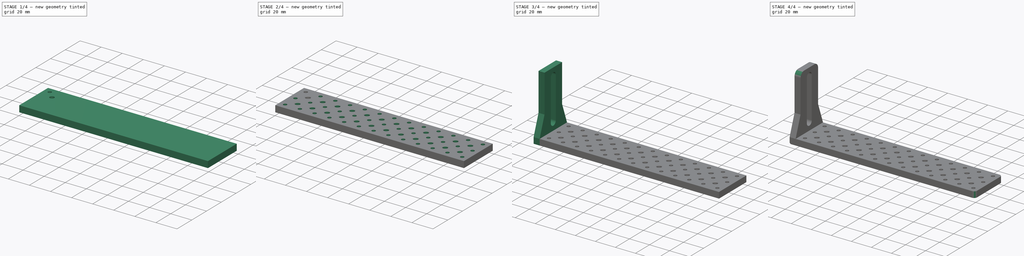
[diagram: build sequence overview — one tinted view per stage of 4, left to right]
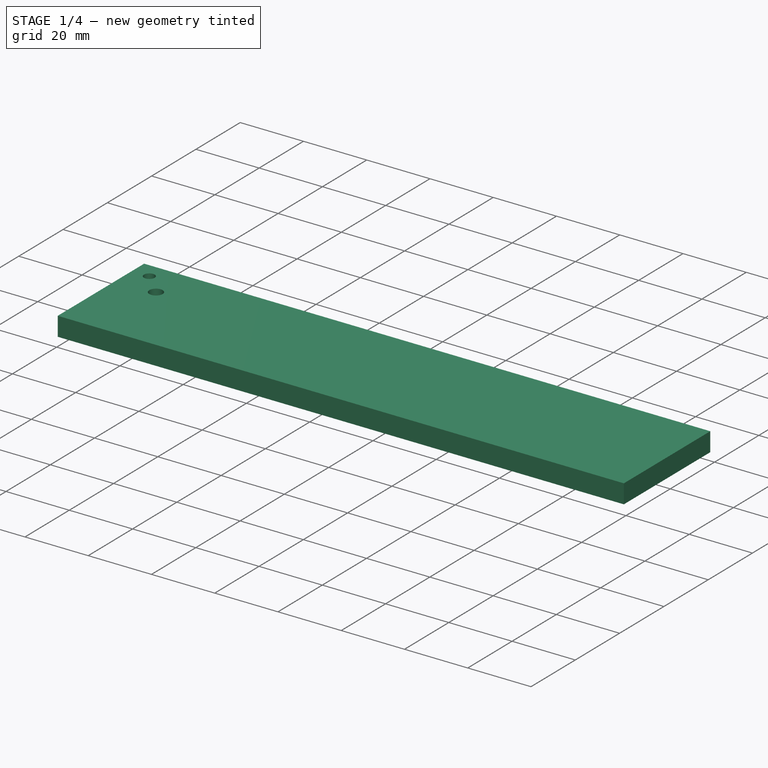
[diagram: stage 1 of 4 — iso view after this stage's code; geometry added in this stage tinted green]
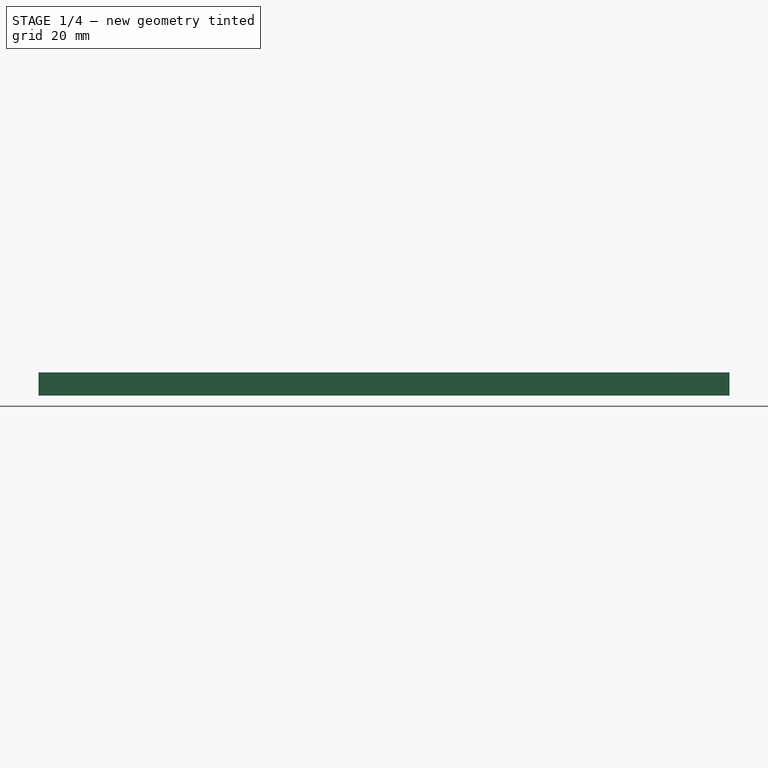
[diagram: stage 1 of 4 — front view after this stage's code; geometry added in this stage tinted green]
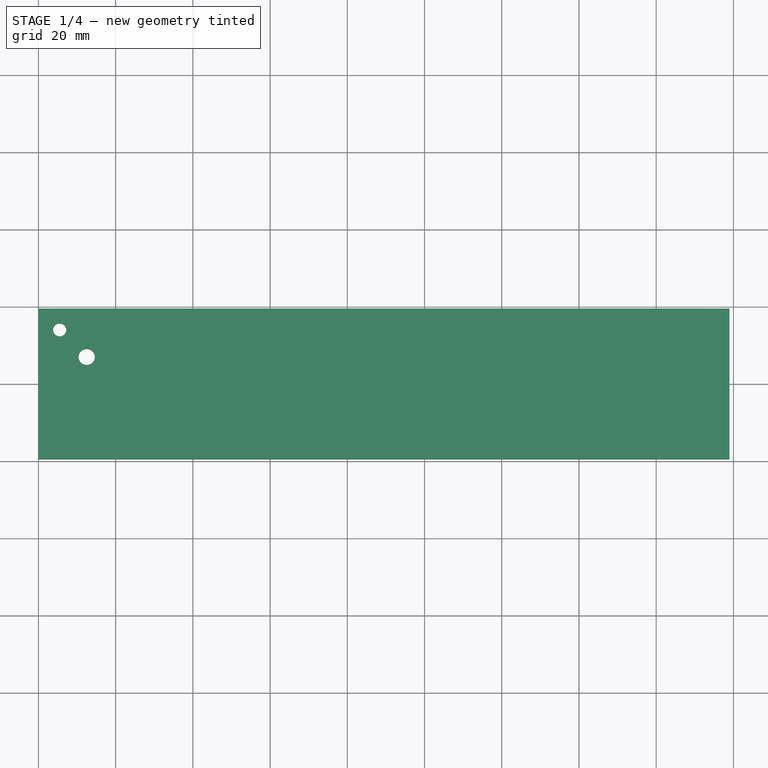
[diagram: stage 1 of 4 — top view after this stage's code; geometry added in this stage tinted green]
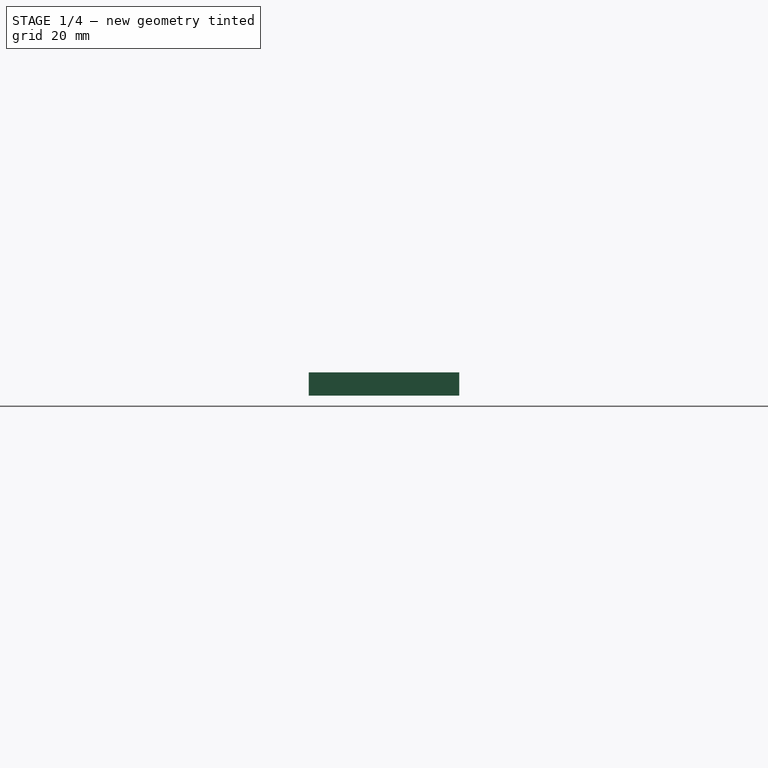
[diagram: stage 1 of 4 — right view after this stage's code; geometry added in this stage tinted green]
FCSTD DOCUMENT  (FreeCAD 0.19R)
Label: hat_rod
License: All rights reserved
LicenseURL: http://en.wikipedia.org/wiki/All_rights_reserved
objects: Sketcher::SketchObject×5, PartDesign::LinearPattern×3, PartDesign::Pad×2, PartDesign::Pocket×2, PartDesign::Chamfer×2, PartDesign::MultiTransform×2, PartDesign::Fillet×2, PartDesign::Hole×1, PartDesign::Mirrored×1, PartDesign::Body×1
note: 30 computed .brp shape members not serialized (recipe doc carries the construction recipe); baked Part::Feature solids carry a one-line shape summary decoded from their .brp

FEATURE [Sketcher::SketchObject] Sketch  label="rod_sk"
  FullyConstrained = true
  MapMode = 5
  Support = -> [XY_Plane]
  sketch-geometry (4):
    g0: LineSegment StartX=0 StartY=19.5 StartZ=0 EndX=179 EndY=19.5 EndZ=0
    g1: LineSegment StartX=179 StartY=19.5 StartZ=0 EndX=179 EndY=-19.5 EndZ=0
    g2: LineSegment StartX=179 StartY=-19.5 StartZ=0 EndX=0 EndY=-19.5 EndZ=0
    g3: LineSegment StartX=0 StartY=-19.5 StartZ=0 EndX=0 EndY=19.5 EndZ=0
  constraints (11):
    c: Coincident(g0,g1)
    c: Coincident(g1,g2)
    c: Coincident(g2,g3)
    c: Coincident(g3,g0)
    c: Horizontal(g0)
    c: Horizontal(g2)
    c: Vertical(g1)
    c: PointOnObject(g0,g-2)
    c: Symmetric(g2,g0,g-1)
    c: DistanceY(g3,g3) = 39
    c: DistanceX(g0,g0) = 179
FEATURE [PartDesign::Pad] Pad  label="rod"
  Direction = (1,1,1)
  Length = 6
  Length2 = 100
  Midplane = true
  Profile = -> Sketch
  Type = 0
FEATURE [Sketcher::SketchObject] Sketch001  label="dowel_hole_sk"
  FullyConstrained = true
  MapMode = 5
  Placement = pos=(0,0,3) rot=(0,0,1;0rad)
  Support = -> [Pad]
  sketch-geometry (1):
    g0: Circle CenterX=12.5 CenterY=7 CenterZ=0 NormalX=0 NormalY=0 NormalZ=1 AngleXU=0 Radius=2.1
  constraints (3):
    c: DistanceX(g0) = 12.5
    c: DistanceY(g0) = 7
    c: Radius(g0) = 2.1
FEATURE [PartDesign::Pocket] Pocket  label="dowel_hole"
  BaseFeature = -> Pad
  Length = 5
  Length2 = 100
  Profile = -> Sketch001
  Type = 1
FEATURE [Sketcher::SketchObject] Sketch002  label="M3_hole_sk"
  ExternalGeometry = -> [Pocket]
  FullyConstrained = true
  MapMode = 5
  Placement = pos=(0,0,3) rot=(0,0,1;0rad)
  Support = -> [Pocket]
  sketch-geometry (1):
    g0: Circle CenterX=5.5 CenterY=14 CenterZ=0 NormalX=0 NormalY=0 NormalZ=1 AngleXU=0 Radius=1
  constraints (3):
    c: DistanceX(g0,g-3) = 7
    c: DistanceY(g-3,g0) = 7
    c: Radius(g0) = 1
FEATURE [PartDesign::Hole] Hole  label="M3_hole"
  BaseFeature = -> Pocket
  Depth = 25
  DepthType = 1
  Diameter = 3.4
  DrillForDepth = false
  DrillPoint = 1
  DrillPointAngle = 118
  HoleCutCountersinkAngle = 90
  HoleCutCustomValues = false
  HoleCutDepth = 0
  HoleCutDiameter = 6.1
  HoleCutType = 0
  ModelActualThread = false
  Profile = -> Sketch002
  Tapered = false
  TaperedAngle = 90
  ThreadAngle = 0
  ThreadClass = 0
  ThreadCutOffInner = 0
  ThreadCutOffOuter = 0
  ThreadDirection = 0
  ThreadFit = 0
  ThreadPitch = 0
  ThreadSize = 9
  ThreadType = 1
  Threaded = false
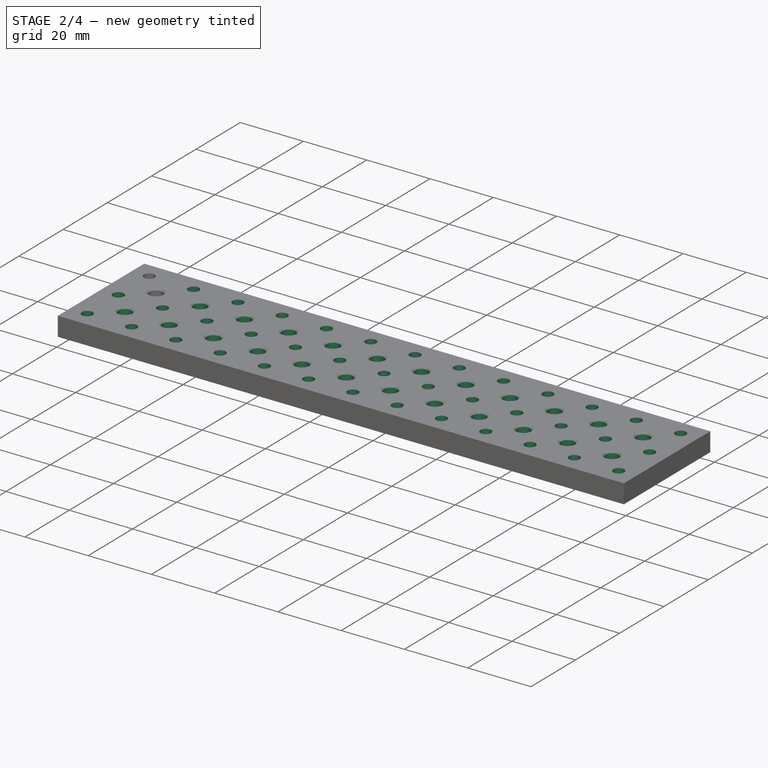
[diagram: stage 2 of 4 — iso view after this stage's code; geometry added in this stage tinted green]
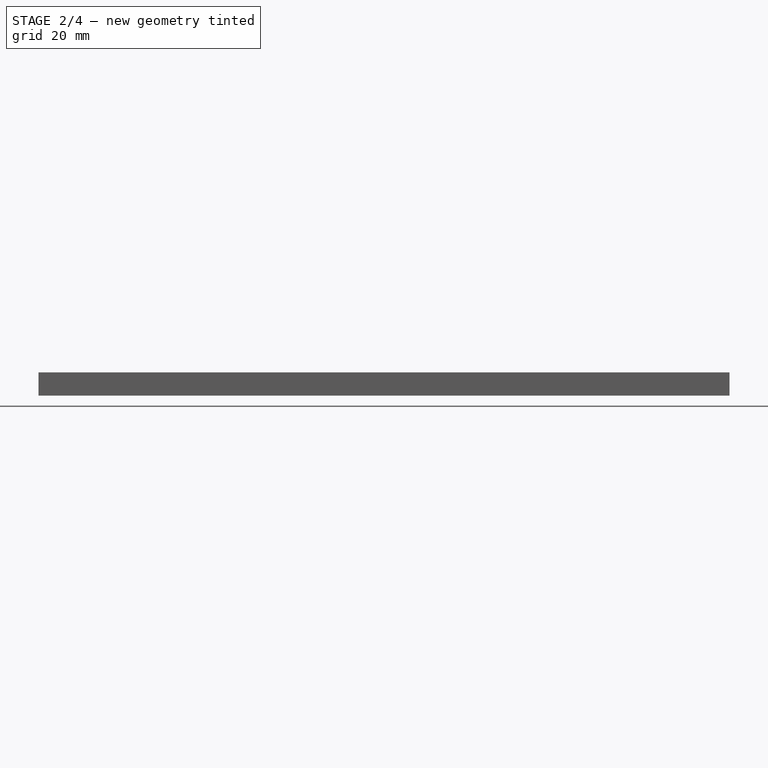
[diagram: stage 2 of 4 — front view after this stage's code; geometry added in this stage tinted green]
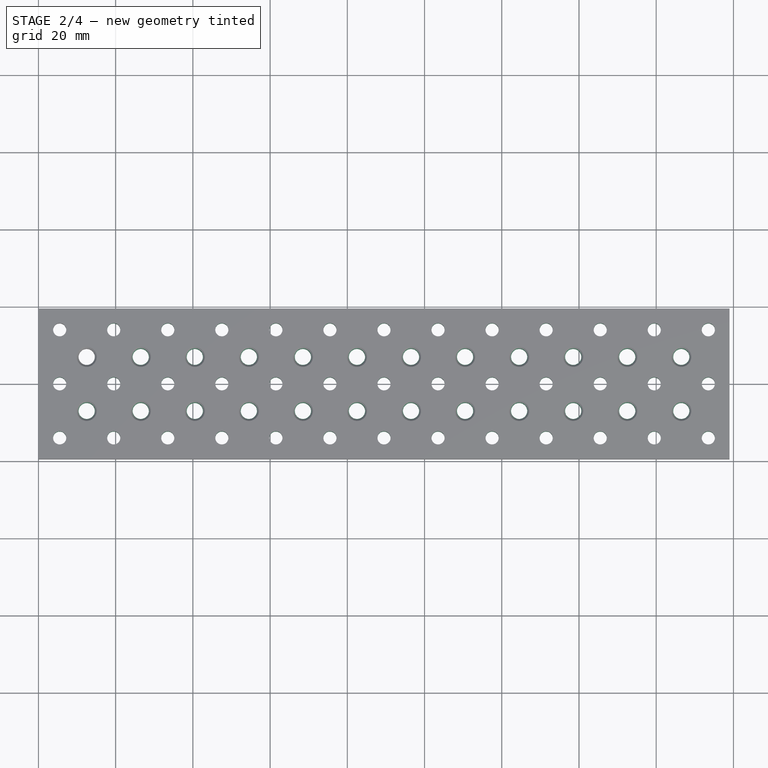
[diagram: stage 2 of 4 — top view after this stage's code; geometry added in this stage tinted green]
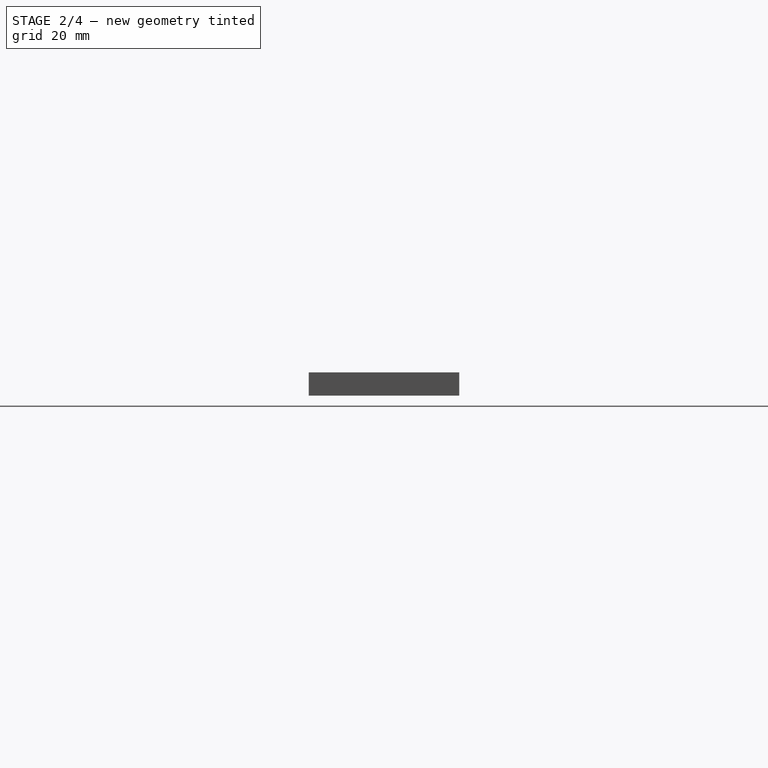
[diagram: stage 2 of 4 — right view after this stage's code; geometry added in this stage tinted green]
FEATURE [PartDesign::Mirrored] Mirrored
  MirrorPlane = -> XZ_Plane
FEATURE [PartDesign::LinearPattern] LinearPattern
  Direction = -> X_Axis
  Length = 154
  Occurrences = 12
FEATURE [PartDesign::LinearPattern] LinearPattern001
  Direction = -> Y_Axis
  Length = 28
  Occurrences = 3
  Reversed = true
FEATURE [PartDesign::LinearPattern] LinearPattern002
  Direction = -> X_Axis
  Length = 168
  Occurrences = 13
FEATURE [PartDesign::Chamfer] Chamfer  label="dowel_chamfer"
  Angle = 45
  Base = -> Hole [Edge12,Edge15]
  BaseFeature = -> Hole
  ChamferType = 0
  FlipDirection = false
  Size = 0.5
  Size2 = 1
  SupportTransform = false
FEATURE [PartDesign::MultiTransform] MultiTransform  label="multi_dowel_hole"
  BaseFeature = -> Chamfer
  Originals = -> [Pocket,Chamfer]
  Transformations = -> [Mirrored,LinearPattern]
FEATURE [PartDesign::MultiTransform] MultiTransform001  label="multi_M3_hole"
  BaseFeature = -> MultiTransform
  Originals = -> [Hole]
  Transformations = -> [LinearPattern001,LinearPattern002]
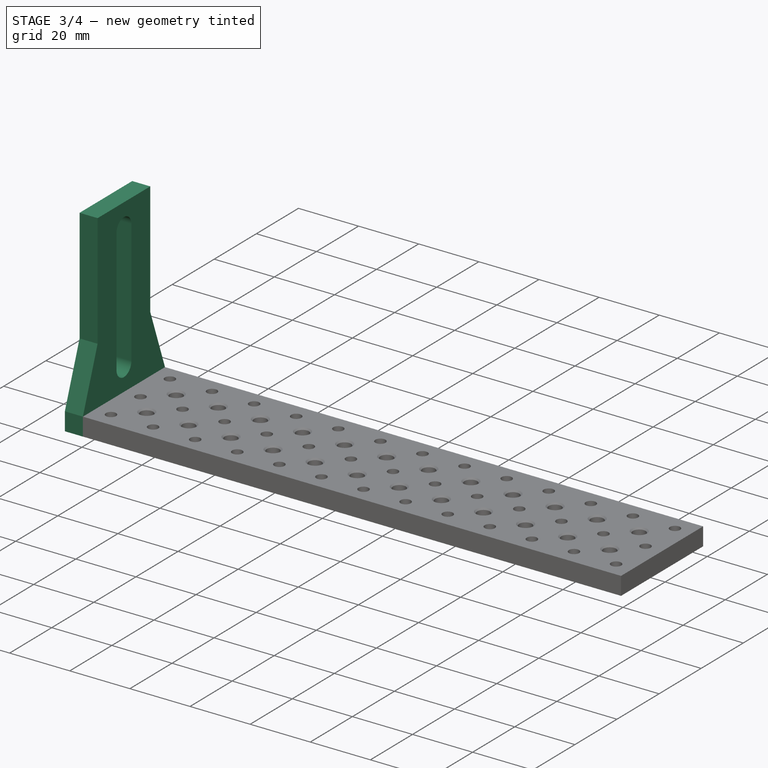
[diagram: stage 3 of 4 — iso view after this stage's code; geometry added in this stage tinted green]
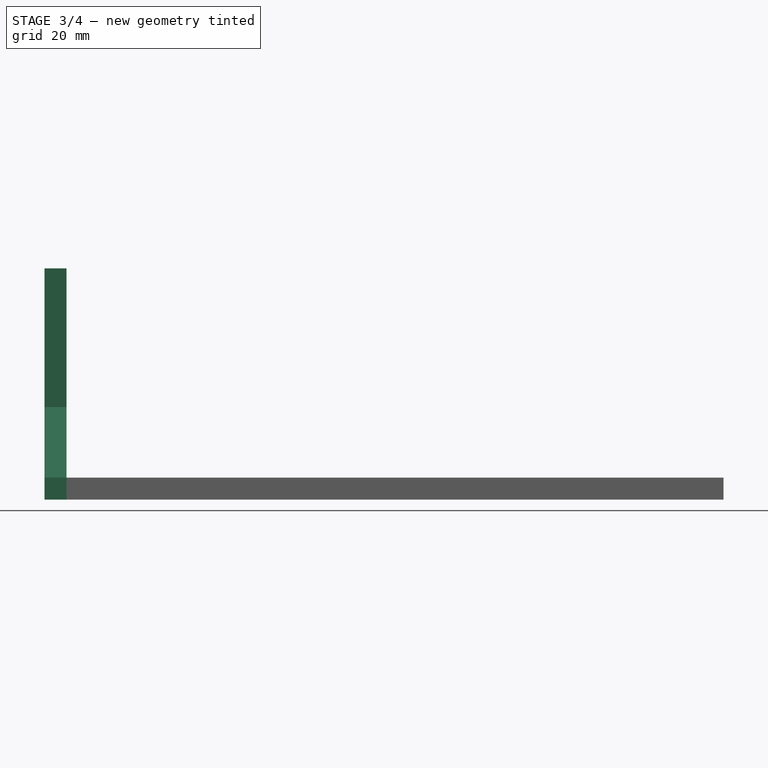
[diagram: stage 3 of 4 — front view after this stage's code; geometry added in this stage tinted green]
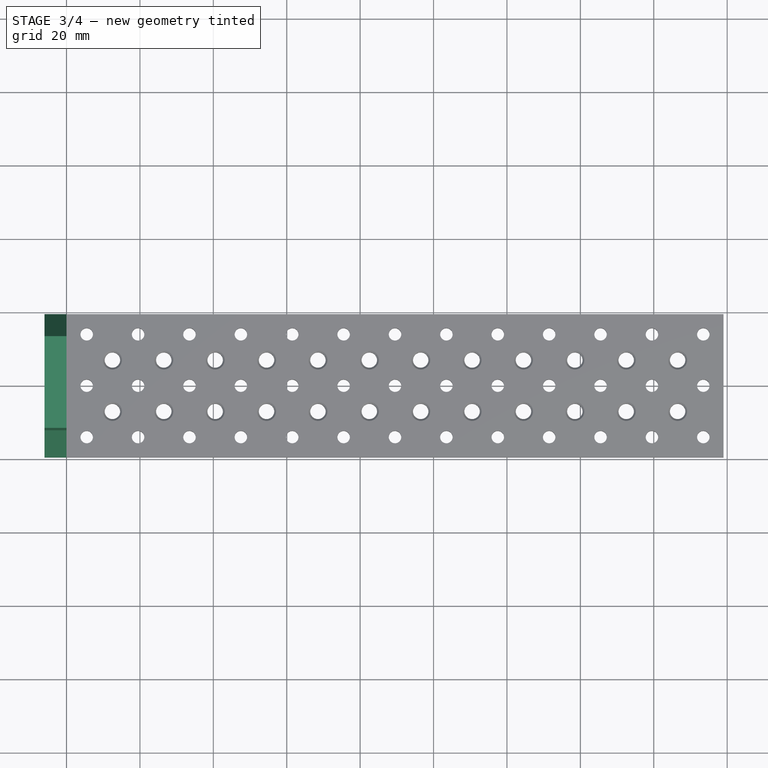
[diagram: stage 3 of 4 — top view after this stage's code; geometry added in this stage tinted green]
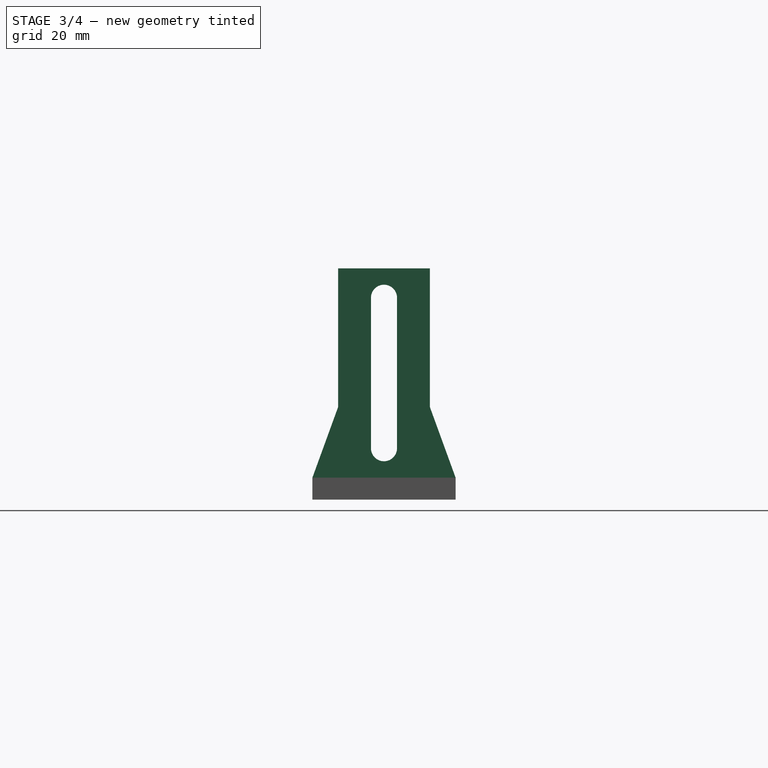
[diagram: stage 3 of 4 — right view after this stage's code; geometry added in this stage tinted green]
FEATURE [Sketcher::SketchObject] Sketch003  label="base_sk"
  ExternalGeometry = -> [MultiTransform001]
  FullyConstrained = true
  MapMode = 5
  Placement = pos=(0,0,0) rot=(0.57735,0.57735,0.57735;2.0944rad)
  Support = -> [YZ_Plane]
  sketch-geometry (8):
    g0: LineSegment StartX=-12.5 StartY=60 StartZ=0 EndX=12.5 EndY=60 EndZ=0
    g1: LineSegment StartX=12.5 StartY=60 StartZ=0 EndX=12.5 EndY=22.2323 EndZ=0
    g2: LineSegment StartX=-12.5 StartY=60 StartZ=0 EndX=-12.5 EndY=22.2323 EndZ=0
    g3: LineSegment StartX=-12.5 StartY=22.2323 StartZ=0 EndX=-19.5 EndY=3 EndZ=0
    g4: LineSegment StartX=12.5 StartY=22.2323 StartZ=0 EndX=19.5 EndY=3 EndZ=0
    g5: LineSegment StartX=-19.5 StartY=3 StartZ=0 EndX=-19.5 EndY=-3 EndZ=0
    g6: LineSegment StartX=-19.5 StartY=-3 StartZ=0 EndX=19.5 EndY=-3 EndZ=0
    g7: LineSegment StartX=19.5 StartY=-3 StartZ=0 EndX=19.5 EndY=3 EndZ=0
  constraints (19):
    c: Horizontal(g0)
    c: Coincident(g1,g0)
    c: Vertical(g1)
    c: Coincident(g2,g0)
    c: Vertical(g2)
    c: Coincident(g3,g2)
    c: Coincident(g4,g1)
    c: Symmetric(g2,g1,g-2)
    c: DistanceY(g0) = 60
    c: Distance(g0) = 25
    c: Coincident(g4,g-3)
    c: Coincident(g3,g-3)
    c: Coincident(g5,g3)
    c: Coincident(g5,g-4)
    c: Coincident(g6,g5)
    c: Coincident(g6,g-4)
    c: Coincident(g7,g6)
    c: Coincident(g7,g4)
    c: Angle(g-3,g3) = 1.22173
FEATURE [PartDesign::Pad] Pad001  label="base"
  BaseFeature = -> MultiTransform001
  Direction = (1,1,1)
  Length = 6
  Length2 = 100
  Profile = -> Sketch003
  Reversed = true
  Type = 0
FEATURE [Sketcher::SketchObject] Sketch004  label="1on4_slot_sk"
  ExternalGeometry = -> [Pad001]
  FullyConstrained = true
  MapMode = 5
  Placement = pos=(0,0,0) rot=(0.57735,0.57735,0.57735;2.0944rad)
  Support = -> [YZ_Plane]
  sketch-geometry (4):
    g0: ArcOfCircle CenterX=0 CenterY=52 CenterZ=0 NormalX=0 NormalY=0 NormalZ=1 AngleXU=0 Radius=3.55 StartAngle=4.602e-13 EndAngle=3.14159
    g1: ArcOfCircle CenterX=-8.12e-14 CenterY=11 CenterZ=0 NormalX=0 NormalY=0 NormalZ=1 AngleXU=0 Radius=3.55 StartAngle=3.14159 EndAngle=6.28319
    g2: LineSegment StartX=-3.55 StartY=52 StartZ=0 EndX=-3.55 EndY=11 EndZ=0
    g3: LineSegment StartX=3.55 StartY=52 StartZ=0 EndX=3.55 EndY=11 EndZ=0
  constraints (10):
    c: Tangent(g0,g3) = 1.5708
    c: Tangent(g0,g2) = -1.5708
    c: Tangent(g2,g1) = -1.5708
    c: Tangent(g3,g1) = 1.5708
    c: Vertical(g2)
    c: Equal(g0,g1)
    c: PointOnObject(g0,g-2)
    c: Diameter(g0) = 7.1
    c: Distance(g1,g-4) = 8
    c: Distance(g0,g-3) = 8
FEATURE [PartDesign::Pocket] Pocket001  label="1on4_slot"
  BaseFeature = -> Pad001
  Length = 5
  Length2 = 100
  Profile = -> Sketch004
  Type = 1
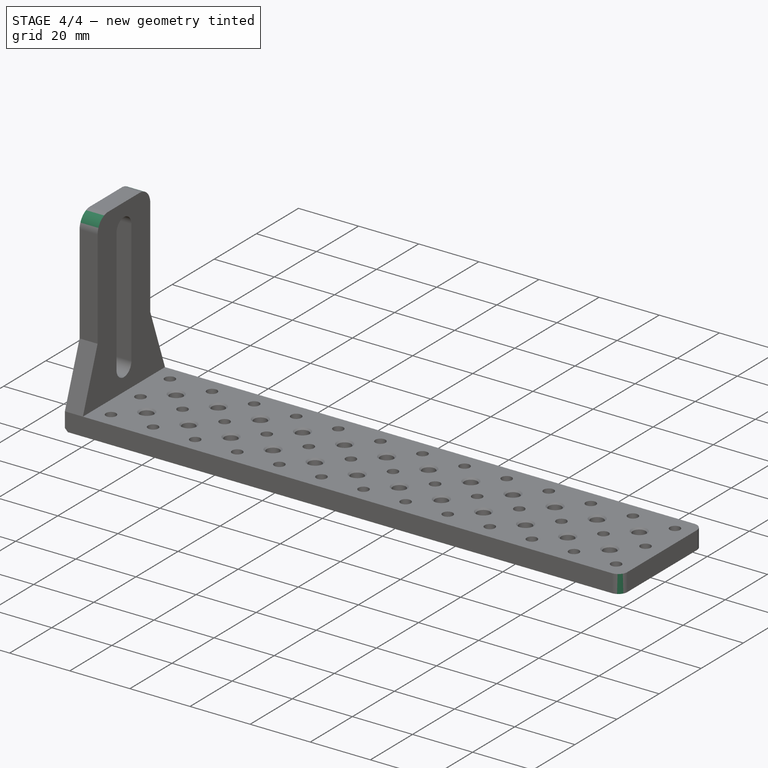
[diagram: stage 4 of 4 — iso view after this stage's code; geometry added in this stage tinted green]
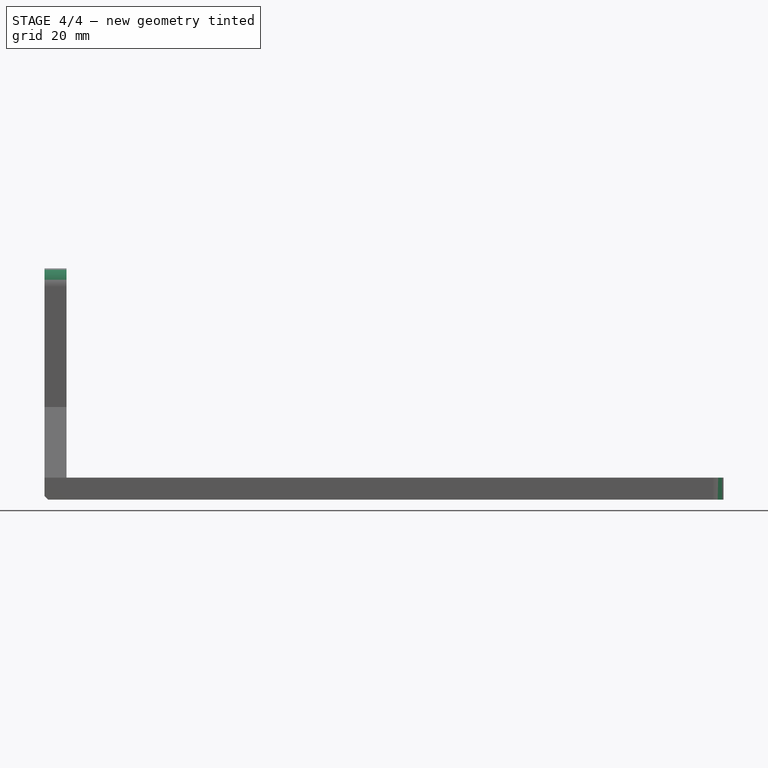
[diagram: stage 4 of 4 — front view after this stage's code; geometry added in this stage tinted green]
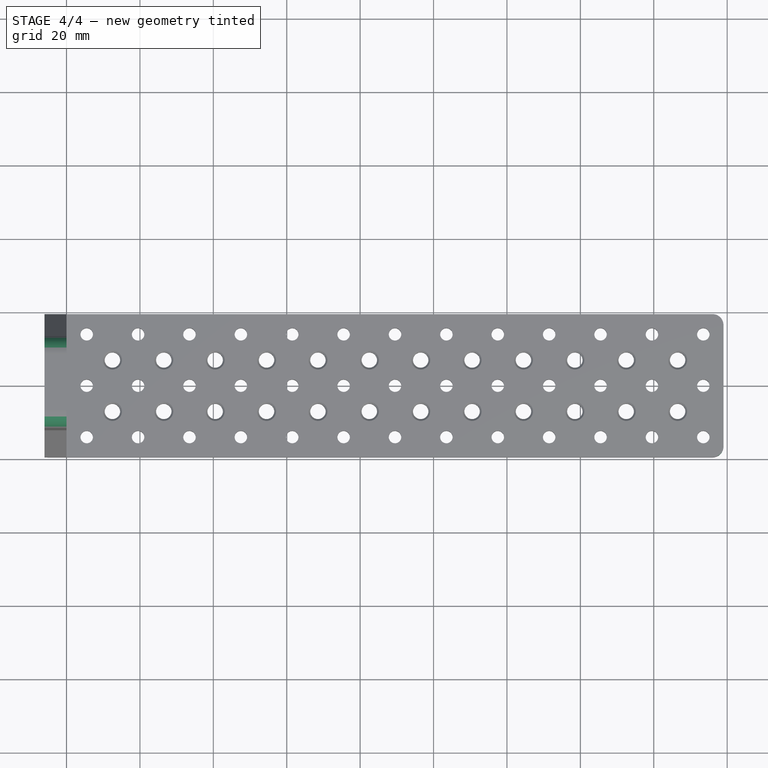
[diagram: stage 4 of 4 — top view after this stage's code; geometry added in this stage tinted green]
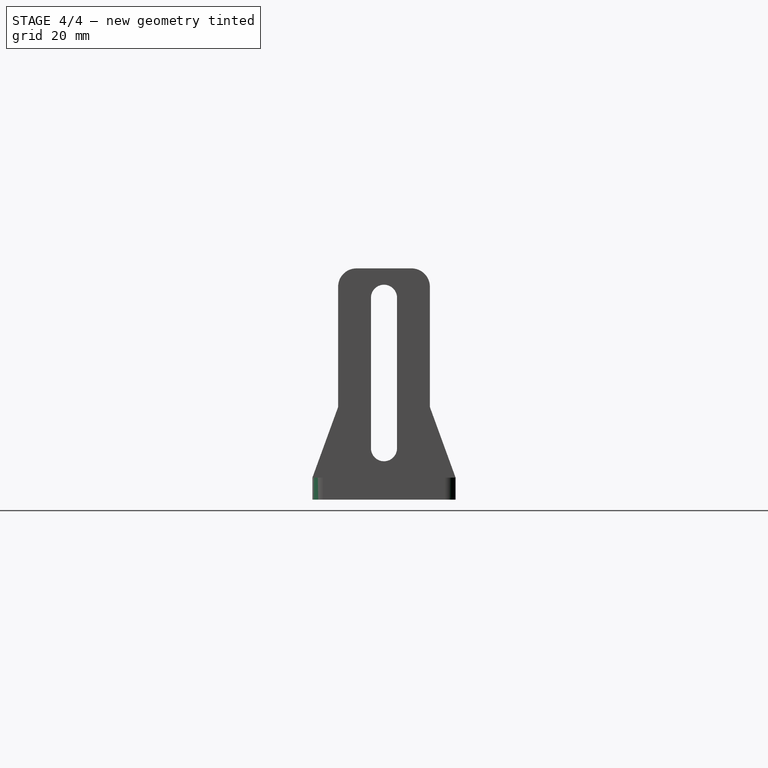
[diagram: stage 4 of 4 — right view after this stage's code; geometry added in this stage tinted green]
FEATURE [PartDesign::Fillet] Fillet  label="top_fillet"
  Base = -> Pocket001 [Edge69,Edge74]
  BaseFeature = -> Pocket001
  Radius = 3
  SupportTransform = false
FEATURE [PartDesign::Fillet] Fillet001  label="base_fillet"
  Base = -> Fillet [Edge332,Edge331]
  BaseFeature = -> Fillet
  Radius = 5
  SupportTransform = false
FEATURE [PartDesign::Chamfer] Chamfer001  label="bot_chamfer"
  Angle = 45
  Base = -> Fillet001 [Edge10]
  BaseFeature = -> Fillet001
  ChamferType = 0
  FlipDirection = false
  Size = 1
  Size2 = 1
  SupportTransform = false
FEATURE [PartDesign::Body] Body
  Group = -> [Sketch,Pad,Sketch001,Pocket,Sketch002,Hole,Chamfer,MultiTransform,Mirrored,LinearPattern,MultiTransform001,LinearPattern001,LinearPattern002,Sketch003,Pad001,Sketch004,Pocket001,Fillet,Fillet001,Chamfer001]
  Origin = -> Origin
  Tip = -> Chamfer001
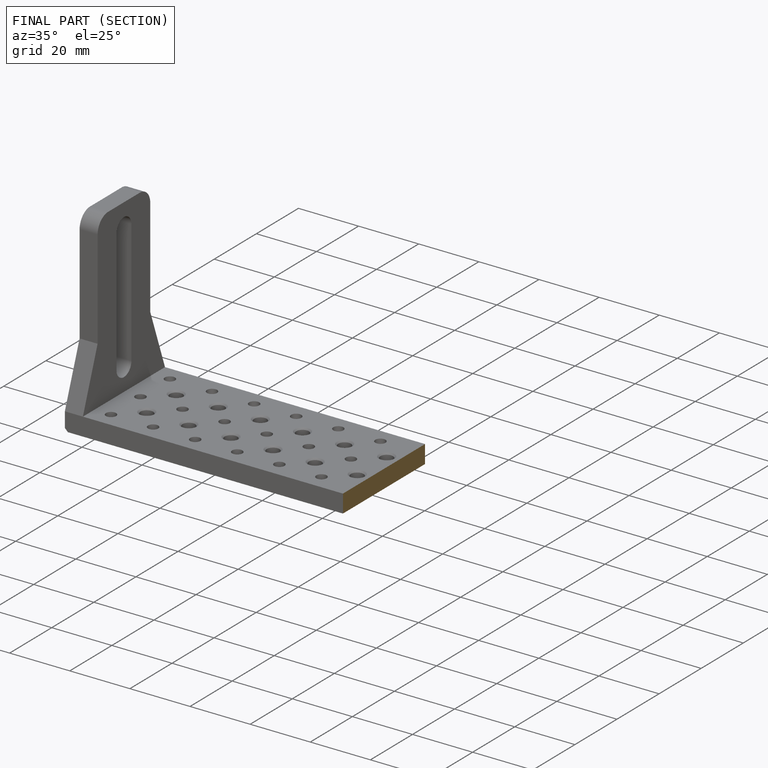
[diagram: finished part — half-section view (interior)]
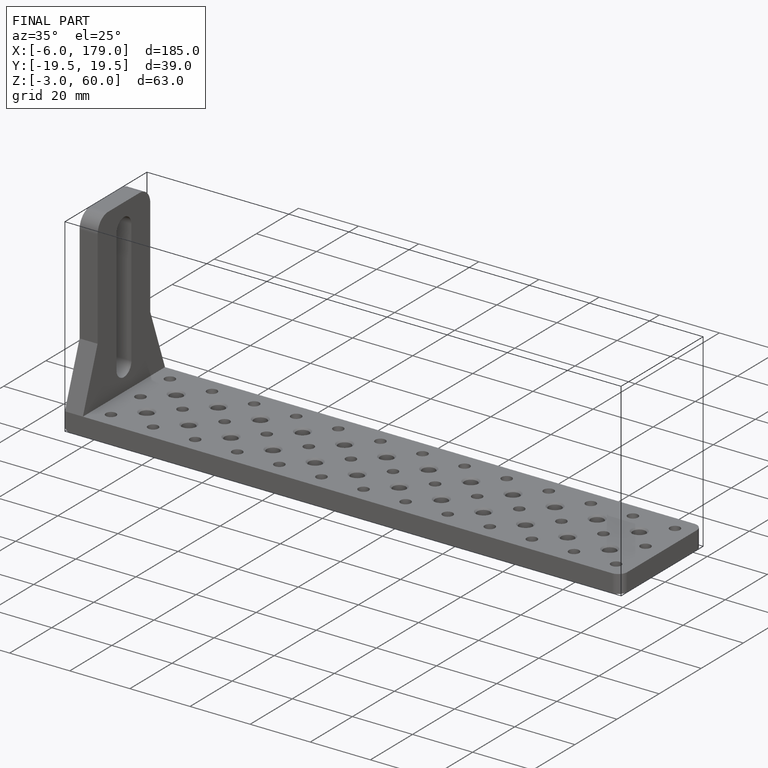
[diagram: finished part — iso view with bounding-box wireframe]
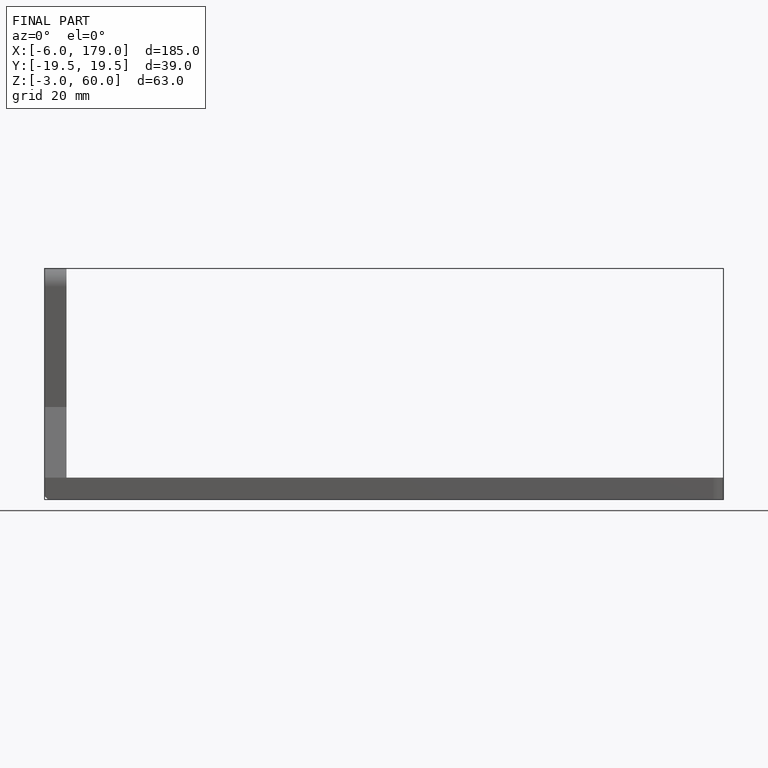
[diagram: finished part — front view with bounding-box wireframe]
